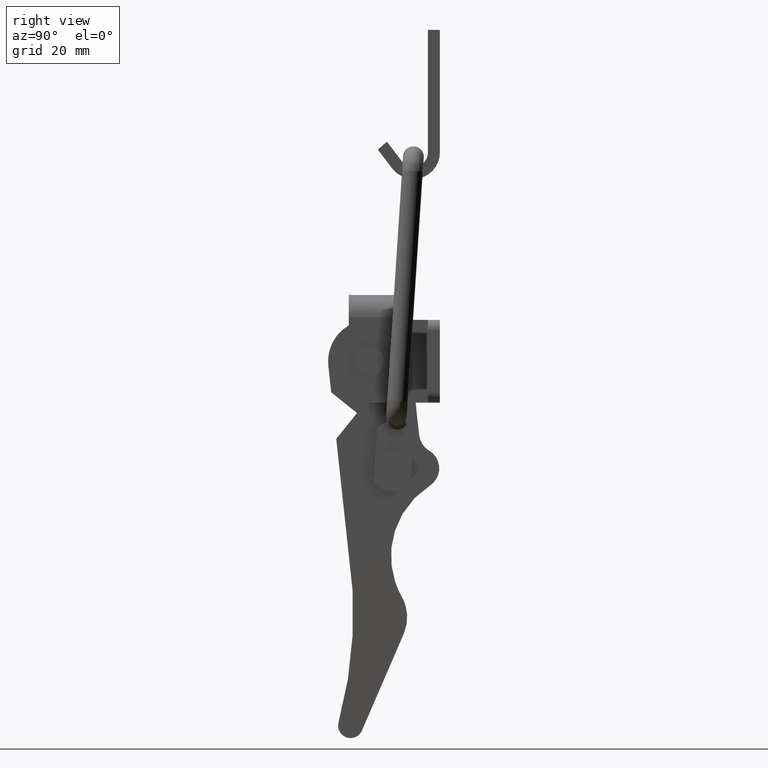
[diagram: clean part render]
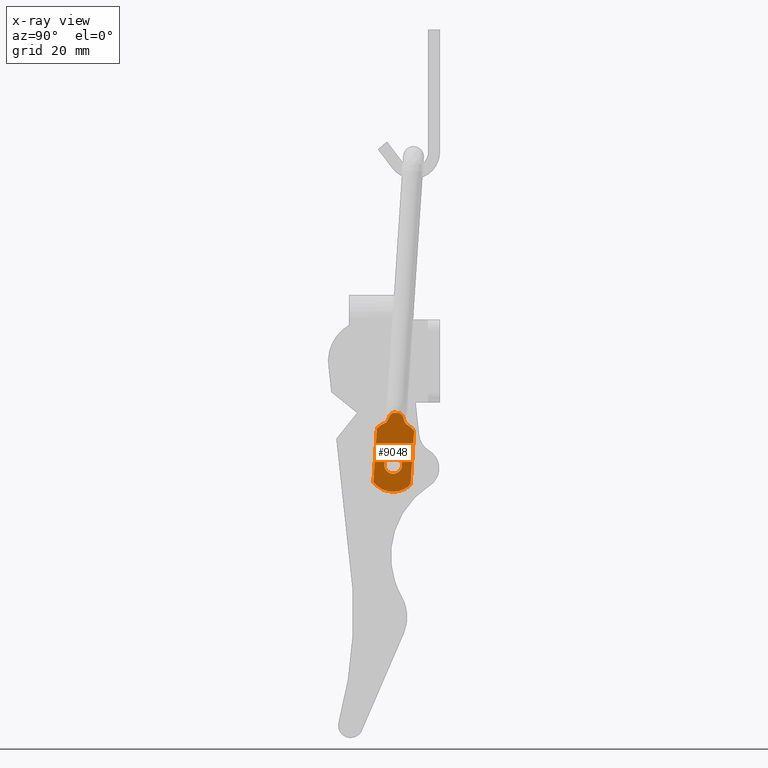
[diagram: x-ray — body ghosted, one internal face saturated and labeled with its STEP entity id]
A machine part, right view, then the same camera in x-ray: the body is ghosted and one INTERNAL B-rep face — a face not visible from any outside direction — is saturated and labeled: STEP entity #9048.
In plain terms, the highlighted face is a freeform B-spline surface patch.
Its self-contained STEP definition (entity closure, byte-faithful):
#5012=CARTESIAN_POINT('',(-2.349999999999965,3.575627732585133,-24.862351942771308));
#5013=VERTEX_POINT('',#5012);
#5019=CARTESIAN_POINT('',(-2.349999999999965,5.719000000000080,-27.181039000000101));
#5020=VERTEX_POINT('',#5019);
#5021=CARTESIAN_POINT('',(-2.349999999999965,3.575627732585133,-24.862351942771308));
#5022=CARTESIAN_POINT('',(-2.349999999999965,3.569000000000080,-24.946565268513126));
#5023=CARTESIAN_POINT('',(-2.349999999999965,3.569000000000080,-25.031039000000099));
#5024=CARTESIAN_POINT('',(-2.349999999999965,3.569000000000079,-27.181039000000094));
#5025=CARTESIAN_POINT('',(-2.349999999999965,5.719000000000080,-27.181039000000101));
#5033=(BOUNDED_CURVE()B_SPLINE_CURVE(2,(#5021,#5022,#5023,#5024,#5025),.UNSPECIFIED.,.F.,.U.)B_SPLINE_CURVE_WITH_KNOTS((3,2,3),(0.736331300406599,0.750000000000000,1.0),.UNSPECIFIED.)CURVE()GEOMETRIC_REPRESENTATION_ITEM()RATIONAL_B_SPLINE_CURVE((0.969723355699820,0.983986122316379,1.0,0.707106781186547,1.0))REPRESENTATION_ITEM(''));
#5034=EDGE_CURVE('',#5013,#5020,#5033,.T.);
#5036=CARTESIAN_POINT('',(-2.349999999999965,7.862372267415028,-25.199726057228890));
#5037=VERTEX_POINT('',#5036);
#5038=CARTESIAN_POINT('',(-2.349999999999965,5.719000000000080,-27.181039000000101));
#5039=CARTESIAN_POINT('',(-2.349999999999966,7.706439554435002,-27.181039000000109));
#5040=CARTESIAN_POINT('',(-2.349999999999965,7.862372267415028,-25.199726057228890));
#5048=(BOUNDED_CURVE()B_SPLINE_CURVE(2,(#5038,#5039,#5040),.UNSPECIFIED.,.F.,.U.)B_SPLINE_CURVE_WITH_KNOTS((3,3),(0.0,0.236331300406599),.UNSPECIFIED.)CURVE()GEOMETRIC_REPRESENTATION_ITEM()RATIONAL_B_SPLINE_CURVE((1.0,0.723120658870169,0.969723355699821))REPRESENTATION_ITEM(''));
#5049=EDGE_CURVE('',#5020,#5037,#5048,.T.);
#5095=CARTESIAN_POINT('',(-2.349999999999965,5.719000000000080,-22.881039000000101));
#5096=VERTEX_POINT('',#5095);
#5097=CARTESIAN_POINT('',(-2.349999999999965,7.862372267415029,-25.199726057228890));
#5098=CARTESIAN_POINT('',(-2.349999999999965,7.869000000000081,-25.115512731487069));
#5099=CARTESIAN_POINT('',(-2.349999999999965,7.869000000000081,-25.031039000000099));
#5100=CARTESIAN_POINT('',(-2.349999999999965,7.869000000000081,-22.881039000000101));
#5101=CARTESIAN_POINT('',(-2.349999999999965,5.719000000000080,-22.881039000000101));
#5109=(BOUNDED_CURVE()B_SPLINE_CURVE(2,(#5097,#5098,#5099,#5100,#5101),.UNSPECIFIED.,.F.,.U.)B_SPLINE_CURVE_WITH_KNOTS((3,2,3),(0.236331300406599,0.250000000000000,0.500000000000000),.UNSPECIFIED.)CURVE()GEOMETRIC_REPRESENTATION_ITEM()RATIONAL_B_SPLINE_CURVE((0.969723355699820,0.983986122316379,1.0,0.707106781186547,1.0))REPRESENTATION_ITEM(''));
#5110=EDGE_CURVE('',#5037,#5096,#5109,.T.);
#5112=CARTESIAN_POINT('',(-2.349999999999965,5.719000000000080,-22.881039000000101));
#5113=CARTESIAN_POINT('',(-2.349999999999965,3.731560445565170,-22.881039000000108));
#5114=CARTESIAN_POINT('',(-2.349999999999965,3.575627732585132,-24.862351942771316));
#5122=(BOUNDED_CURVE()B_SPLINE_CURVE(2,(#5112,#5113,#5114),.UNSPECIFIED.,.F.,.U.)B_SPLINE_CURVE_WITH_KNOTS((3,3),(0.500000000000000,0.736331300406598),.UNSPECIFIED.)CURVE()GEOMETRIC_REPRESENTATION_ITEM()RATIONAL_B_SPLINE_CURVE((1.0,0.723120658870170,0.969723355699818))REPRESENTATION_ITEM(''));
#5123=EDGE_CURVE('',#5096,#5013,#5122,.T.);
#7840=CARTESIAN_POINT('',(-2.350000000000040,8.223347501781761,-13.851435794082020));
#7841=VERTEX_POINT('',#7840);
#7871=CARTESIAN_POINT('',(-2.349999999999965,9.066442034236900,-15.328065355023449));
#7872=VERTEX_POINT('',#7871);
#7873=CARTESIAN_POINT('',(-2.349999999999965,9.066442034236900,-15.328065355023449));
#7874=CARTESIAN_POINT('',(-2.349999999999965,9.003302645087032,-15.290750497939410));
#7875=CARTESIAN_POINT('',(-2.350000000000040,8.944753244607336,-15.248098195954331));
#7876=CARTESIAN_POINT('',(-2.350000000000041,8.835793545737372,-15.153329078655730));
#7877=CARTESIAN_POINT('',(-2.350000000000040,8.785329039068717,-15.101107499529220));
#7878=CARTESIAN_POINT('',(-2.350000000000040,8.645915797868817,-14.931541259464719));
#7879=CARTESIAN_POINT('',(-2.350000000000040,8.573347946399469,-14.806816386840829));
#7880=CARTESIAN_POINT('',(-2.350000000000040,8.484141777986620,-14.608466133672460));
#7881=CARTESIAN_POINT('',(-2.350000000000039,8.457667375940368,-14.540373439987739));
#7882=CARTESIAN_POINT('',(-2.350000000000040,8.409086968247987,-14.403077475026709));
#7883=CARTESIAN_POINT('',(-2.350000000000040,8.386882045617021,-14.333711569732870));
#7884=CARTESIAN_POINT('',(-2.350000000000039,8.343041008051403,-14.194783929432370));
#7885=CARTESIAN_POINT('',(-2.350000000000039,8.321369576074403,-14.125234353414230));
#7886=CARTESIAN_POINT('',(-2.350000000000038,8.286666958089713,-14.021665848117850));
#7887=CARTESIAN_POINT('',(-2.350000000000039,8.274738892661341,-13.987267135324570));
#7888=CARTESIAN_POINT('',(-2.350000000000039,8.256050209088084,-13.935943315405821));
#7889=CARTESIAN_POINT('',(-2.350000000000039,8.249688418255415,-13.918880899593191));
#7890=CARTESIAN_POINT('',(-2.350000000000039,8.236713292431041,-13.884988634209110));
#7891=CARTESIAN_POINT('',(-2.350000000000069,8.230042315999279,-13.868063514225479));
#7892=CARTESIAN_POINT('',(-2.350000000000040,8.223347501781761,-13.851435794082020));
#7893=B_SPLINE_CURVE_WITH_KNOTS('',3,(#7873,#7874,#7875,#7876,#7877,#7878,#7879,#7880,#7881,#7882,#7883,#7884,#7885,#7886,#7887,#7888,#7889,#7890,#7891,#7892),.UNSPECIFIED.,.F.,.U.,(4,2,2,2,2,2,2,2,2,4),(0.0,0.125000000000002,0.250000000000005,0.500000000000007,0.625000000000007,0.750000000000007,0.875000000000007,0.937500000000005,0.968750000000003,0.999763077617933),.UNSPECIFIED.);
#7894=EDGE_CURVE('',#7872,#7841,#7893,.T.);
#8280=CARTESIAN_POINT('',(-2.350000000000040,4.695613574579940,-13.620455964062041));
#8281=VERTEX_POINT('',#8280);
#8282=CARTESIAN_POINT('',(-2.349999999999965,3.667276165993165,-14.974579137263779));
#8283=VERTEX_POINT('',#8282);
#8284=CARTESIAN_POINT('',(-2.350000000000040,4.695613574579940,-13.620455964062041));
#8285=CARTESIAN_POINT('',(-2.350000000000040,4.686812426037421,-13.636062994189700));
#8286=CARTESIAN_POINT('',(-2.350000000000040,4.677996255181601,-13.651967617357100));
#8287=CARTESIAN_POINT('',(-2.350000000000040,4.660718148486098,-13.683873063184290));
#8288=CARTESIAN_POINT('',(-2.350000000000040,4.652186824799976,-13.699960816956731));
#8289=CARTESIAN_POINT('',(-2.350000000000040,4.626968346357764,-13.748411204146890));
#8290=CARTESIAN_POINT('',(-2.350000000000040,4.610658708344724,-13.780961972156399));
#8291=CARTESIAN_POINT('',(-2.350000000000040,4.562753580552998,-13.879124477682669));
#8292=CARTESIAN_POINT('',(-2.350000000000040,4.532202268230383,-13.945256578608660));
#8293=CARTESIAN_POINT('',(-2.350000000000040,4.470628088920840,-14.077285782289280));
#8294=CARTESIAN_POINT('',(-2.350000000000040,4.439571791989683,-14.143166225308880));
#8295=CARTESIAN_POINT('',(-2.350000000000040,4.373511481666726,-14.272959776021910));
#8296=CARTESIAN_POINT('',(-2.350000000000041,4.338388199522859,-14.337021237212751));
#8297=CARTESIAN_POINT('',(-2.350000000000039,4.224091770452828,-14.522052862848319));
#8298=CARTESIAN_POINT('',(-2.350000000000040,4.135887868553056,-14.636255120365590));
#8299=CARTESIAN_POINT('',(-2.350000000000040,3.975565863988391,-14.786202329931610));
#8300=CARTESIAN_POINT('',(-2.350000000000040,3.918726489295725,-14.831400226676459));
#8301=CARTESIAN_POINT('',(-2.350000000000040,3.798346732931448,-14.911157389953120));
#8302=CARTESIAN_POINT('',(-2.349999999999966,3.734738951604303,-14.945813461172930));
#8303=CARTESIAN_POINT('',(-2.349999999999965,3.667276165993165,-14.974579137263779));
#8304=B_SPLINE_CURVE_WITH_KNOTS('',3,(#8284,#8285,#8286,#8287,#8288,#8289,#8290,#8291,#8292,#8293,#8294,#8295,#8296,#8297,#8298,#8299,#8300,#8301,#8302,#8303),.UNSPECIFIED.,.F.,.U.,(4,2,2,2,2,2,2,2,2,4),(0.0,0.031000040697572,0.062250040697569,0.124750040697568,0.249750040697568,0.374750040697568,0.499750040697568,0.749750040697570,0.874750040697572,0.999750040697574),.UNSPECIFIED.);
#8305=EDGE_CURVE('',#8281,#8283,#8304,.T.);
#8525=CARTESIAN_POINT('',(-2.350000000000040,8.223347501781761,-13.851435794082020));
#8526=CARTESIAN_POINT('',(-2.350000000000040,8.202740465086237,-13.668252299068250));
#8527=CARTESIAN_POINT('',(-2.350000000000040,8.144367353996495,-13.488372964432701));
#8528=CARTESIAN_POINT('',(-2.350000000000040,7.971587116673075,-12.955942988580830));
#8529=CARTESIAN_POINT('',(-2.350000000000040,7.543022757626793,-12.686473626520121));
#8530=CARTESIAN_POINT('',(-2.350000000000040,7.250687774076330,-12.502661510877390));
#8531=CARTESIAN_POINT('',(-2.350000000000040,6.910906718008769,-12.506312067489510));
#8532=CARTESIAN_POINT('',(-2.350000000000040,6.828292747318637,-12.507199659577330));
#8533=CARTESIAN_POINT('',(-2.350000000000040,6.699106617505410,-12.522450079445660));
#8534=CARTESIAN_POINT('',(-2.350000000000040,6.588139231104098,-12.535549777042901));
#8535=CARTESIAN_POINT('',(-2.350000000000040,6.538367926906235,-12.532360310656610));
#8536=CARTESIAN_POINT('',(-2.350000000000040,6.489336744977647,-12.529218273107841));
#8537=CARTESIAN_POINT('',(-2.350000000000040,6.380293355591820,-12.501578657340540));
#8538=CARTESIAN_POINT('',(-2.350000000000040,6.254837004872653,-12.469778789884320));
#8539=CARTESIAN_POINT('',(-2.350000000000040,6.172405206051930,-12.457965343606570));
#8540=CARTESIAN_POINT('',(-2.350000000000040,5.836997371825055,-12.409897456123099));
#8541=CARTESIAN_POINT('',(-2.350000000000040,5.522194789505758,-12.554178147324089));
#8542=CARTESIAN_POINT('',(-2.350000000000040,5.063119831338624,-12.764581924159170));
#8543=CARTESIAN_POINT('',(-2.350000000000040,4.821429603031047,-13.270833595382740));
#8544=CARTESIAN_POINT('',(-2.350000000000040,4.739965074643451,-13.441471663501810));
#8545=CARTESIAN_POINT('',(-2.350000000000040,4.695613574579940,-13.620455964062041));
#8546=B_SPLINE_CURVE_WITH_KNOTS('',2,(#8525,#8526,#8527,#8528,#8529,#8530,#8531,#8532,#8533,#8534,#8535,#8536,#8537,#8538,#8539,#8540,#8541,#8542,#8543,#8544,#8545),.UNSPECIFIED.,.F.,.U.,(3,2,2,2,2,2,2,2,2,2,3),(0.091001461411621,0.125000000000000,0.250000000000000,0.375000000000000,0.437500000000000,0.500000000000000,0.562500000000000,0.625000000000000,0.750000000000000,0.875000000000000,0.909027930131124),.UNSPECIFIED.);
#8547=EDGE_CURVE('',#7841,#8281,#8546,.T.);
#8571=CARTESIAN_POINT('',(-2.349999999999965,10.766665165172361,-16.829215615305198));
#8572=VERTEX_POINT('',#8571);
#8578=CARTESIAN_POINT('',(-2.349999999999965,9.917530811972739,-29.784258895749399));
#8579=VERTEX_POINT('',#8578);
#8580=CARTESIAN_POINT('',(-2.349999999999965,9.917530811972739,-29.784258895749399));
#8581=CARTESIAN_POINT('',(-2.349999999999965,10.766665165172361,-16.829215615305198));
#8582=QUASI_UNIFORM_CURVE('',1,(#8580,#8581),.UNSPECIFIED.,.F.,.U.);
#8583=EDGE_CURVE('',#8579,#8572,#8582,.T.);
#8625=CARTESIAN_POINT('',(-2.349999999999965,0.937352813315353,-29.195639356824501));
#8626=VERTEX_POINT('',#8625);
#8627=CARTESIAN_POINT('',(-2.349999999999965,0.937352813315377,-29.195639356824479));
#8628=CARTESIAN_POINT('',(-2.349999999999965,2.592150642754848,-31.339524288394642));
#8629=CARTESIAN_POINT('',(-2.349999999999965,5.294597918007628,-31.516660339524812));
#8630=CARTESIAN_POINT('',(-2.349999999999965,7.997045193260407,-31.693796390654978));
#8631=CARTESIAN_POINT('',(-2.349999999999965,9.917530811972737,-29.784258895749399));
#8639=(BOUNDED_CURVE()B_SPLINE_CURVE(2,(#8627,#8628,#8629,#8630,#8631),.UNSPECIFIED.,.F.,.U.)B_SPLINE_CURVE_WITH_KNOTS((3,2,3),(0.0,0.500000000000000,1.0),.UNSPECIFIED.)CURVE()GEOMETRIC_REPRESENTATION_ITEM()RATIONAL_B_SPLINE_CURVE((1.0,0.911452125485527,1.0,0.911452125485527,1.0))REPRESENTATION_ITEM(''));
#8640=EDGE_CURVE('',#8626,#8579,#8639,.T.);
#8663=CARTESIAN_POINT('',(-2.349999999999965,1.785418517755810,-16.241658949306998));
#8664=VERTEX_POINT('',#8663);
#8665=CARTESIAN_POINT('',(-2.349999999999965,1.785418517755810,-16.241658949306998));
#8666=CARTESIAN_POINT('',(-2.349999999999965,0.937352813315353,-29.195639356824501));
#8667=QUASI_UNIFORM_CURVE('',1,(#8665,#8666),.UNSPECIFIED.,.F.,.U.);
#8668=EDGE_CURVE('',#8664,#8626,#8667,.T.);
#8738=CARTESIAN_POINT('',(-2.349999999999965,3.667276165993165,-14.974579137263779));
#8739=CARTESIAN_POINT('',(-2.349999999999965,2.604373093060046,-15.426963783105430));
#8740=CARTESIAN_POINT('',(-2.349999999999965,1.785418517755800,-16.241658949306991));
#8748=(BOUNDED_CURVE()B_SPLINE_CURVE(2,(#8738,#8739,#8740),.UNSPECIFIED.,.F.,.U.)CURVE()GEOMETRIC_REPRESENTATION_ITEM()QUASI_UNIFORM_CURVE()RATIONAL_B_SPLINE_CURVE((1.0,0.981966283300739,1.0))REPRESENTATION_ITEM(''));
#8749=EDGE_CURVE('',#8283,#8664,#8748,.T.);
#8774=CARTESIAN_POINT('',(-2.349999999999965,10.766665165172380,-16.829215615305181));
#8775=CARTESIAN_POINT('',(-2.349999999999965,10.061021563954002,-15.915014110780026));
#8776=CARTESIAN_POINT('',(-2.349999999999965,9.066442034236902,-15.328065355023449));
#8784=(BOUNDED_CURVE()B_SPLINE_CURVE(2,(#8774,#8775,#8776),.UNSPECIFIED.,.F.,.U.)CURVE()GEOMETRIC_REPRESENTATION_ITEM()QUASI_UNIFORM_CURVE()RATIONAL_B_SPLINE_CURVE((1.0,0.981975719606368,1.0))REPRESENTATION_ITEM(''));
#8785=EDGE_CURVE('',#8572,#7872,#8784,.T.);
#9027=CARTESIAN_POINT('',(-2.350000000000040,0.446378680391210,-11.494051465249040));
#9028=CARTESIAN_POINT('',(-2.350000000000040,0.446378680391210,-32.482417067162118));
#9029=CARTESIAN_POINT('',(-2.350000000000040,11.257639561739211,-11.494051465249040));
#9030=CARTESIAN_POINT('',(-2.350000000000040,11.257639561739211,-32.482417067162118));
#9031=B_SPLINE_SURFACE_WITH_KNOTS('',1,1,((#9027,#9029),(#9028,#9030)),.UNSPECIFIED.,.F.,.F.,.U.,(2,2),(2,2),(0.0,20.988365601913081),(0.0,10.811260881347989),.UNSPECIFIED.);
#9032=ORIENTED_EDGE('',*,*,#8785,.T.);
#9033=ORIENTED_EDGE('',*,*,#7894,.T.);
#9034=ORIENTED_EDGE('',*,*,#8547,.T.);
#9035=ORIENTED_EDGE('',*,*,#8305,.T.);
#9036=ORIENTED_EDGE('',*,*,#8749,.T.);
#9037=ORIENTED_EDGE('',*,*,#8668,.T.);
#9038=ORIENTED_EDGE('',*,*,#8640,.T.);
#9039=ORIENTED_EDGE('',*,*,#8583,.T.);
#9040=EDGE_LOOP('',(#9032,#9033,#9034,#9035,#9036,#9037,#9038,#9039));
#9041=FACE_OUTER_BOUND('',#9040,.T.);
#9042=ORIENTED_EDGE('',*,*,#5123,.F.);
#9043=ORIENTED_EDGE('',*,*,#5110,.F.);
#9044=ORIENTED_EDGE('',*,*,#5049,.F.);
#9045=ORIENTED_EDGE('',*,*,#5034,.F.);
#9046=EDGE_LOOP('',(#9042,#9043,#9044,#9045));
#9047=FACE_BOUND('',#9046,.T.);
#9048=ADVANCED_FACE('',(#9041,#9047),#9031,.T.);